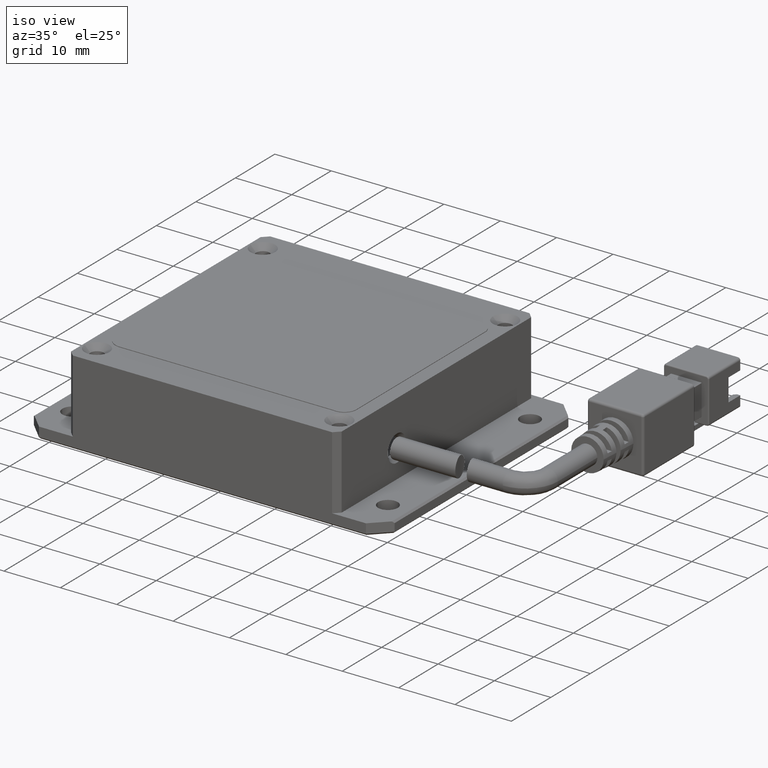
[diagram: clean part render]
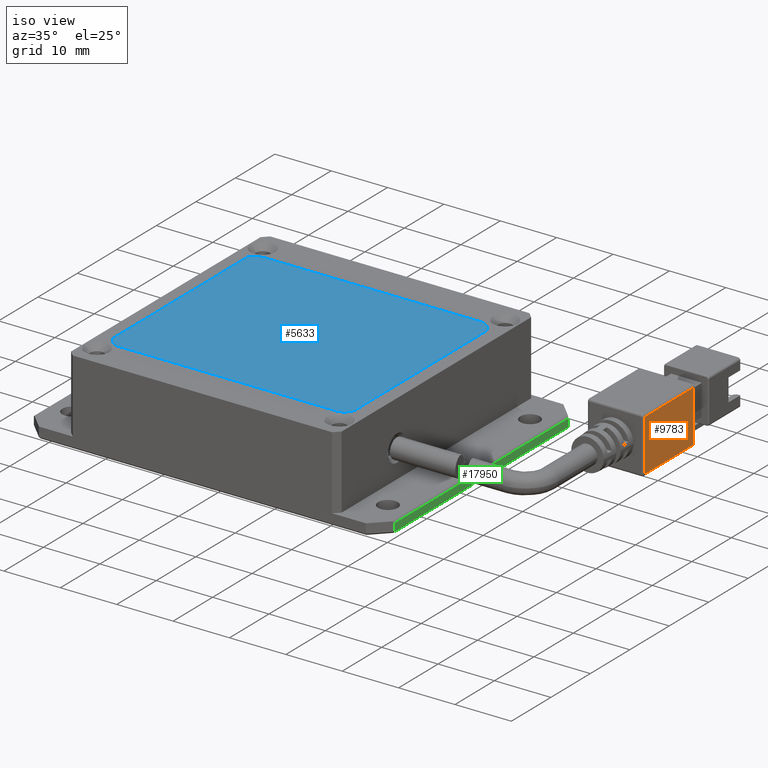
[diagram: same view with three faces highlighted in distinct colors, each labeled with its STEP entity id]
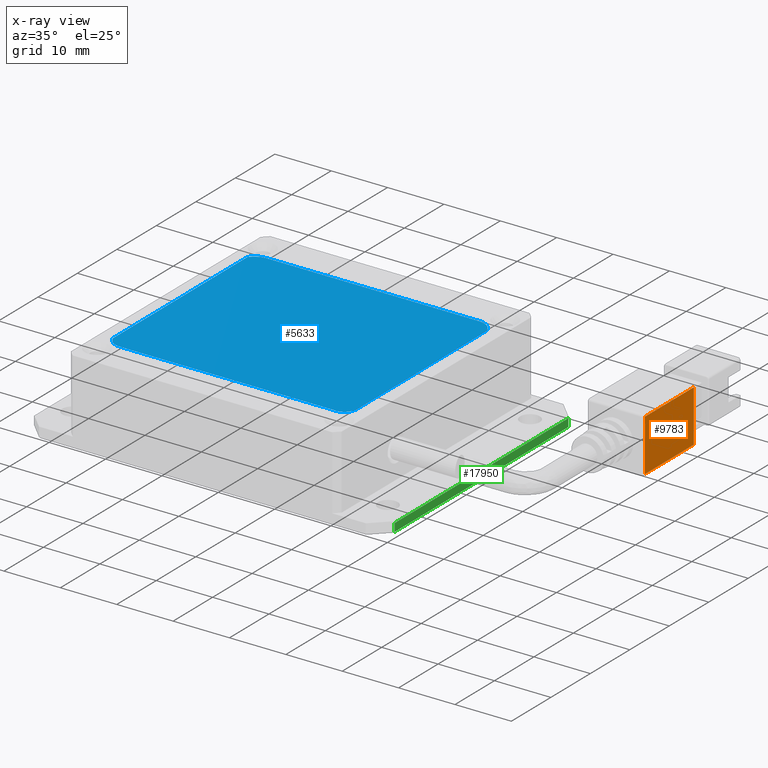
[diagram: x-ray of the same camera — body ghosted, the three highlighted faces saturated]
A machine part, iso view with three faces highlighted in distinct colors.
The next image is the same camera in x-ray (body ghosted, the three faces saturated) — at least one of them is partly hidden behind the body in this view.
Their STEP definitions:

[orange] entity #9783 — the highlighted planar face has unit normal (-1, -0, -0).
#362 = VECTOR ( 'NONE', #4843, 1000.000000000000000 ) ;
#505 = LINE ( 'NONE', #3979, #4218 ) ;
#1325 = CARTESIAN_POINT ( 'NONE',  ( 52.09316533027873000, 13.69095074455903200, 9.999999999983700100 ) ) ;
#1761 = LINE ( 'NONE', #15433, #6433 ) ;
#2798 = DIRECTION ( 'NONE',  ( -8.673617379884010800E-017, 0.0000000000000000000, 1.000000000000000000 ) ) ;
#3044 = ORIENTED_EDGE ( 'NONE', *, *, #3773, .F. ) ;
#3773 = EDGE_CURVE ( 'NONE', #12737, #5353, #1761, .T. ) ;
#3845 = EDGE_CURVE ( 'NONE', #17554, #12230, #505, .T. ) ;
#3979 = CARTESIAN_POINT ( 'NONE',  ( 52.09316533027873000, 26.29095074455903400, 0.3999999999836990100 ) ) ;
#4145 = LINE ( 'NONE', #1325, #14032 ) ;
#4218 = VECTOR ( 'NONE', #18277, 1000.000000000000000 ) ;
#4843 = DIRECTION ( 'NONE',  ( 8.673617379884010800E-017, -0.0000000000000000000, -1.000000000000000000 ) ) ;
#5277 = CARTESIAN_POINT ( 'NONE',  ( 52.09316533027873000, 26.09095074455903400, 9.599999999983701600 ) ) ;
#5353 = VERTEX_POINT ( 'NONE', #5277 ) ;
#6433 = VECTOR ( 'NONE', #20285, 1000.000000000000000 ) ;
#8294 = LINE ( 'NONE', #9555, #362 ) ;
#8371 = EDGE_CURVE ( 'NONE', #5353, #17554, #8294, .T. ) ;
#9269 = DIRECTION ( 'NONE',  ( -8.673617379884010800E-017, -0.0000000000000000000, 1.000000000000000000 ) ) ;
#9555 = CARTESIAN_POINT ( 'NONE',  ( 52.09316533027873000, 26.09095074455903400, -1.629946178027807900E-011 ) ) ;
#9783 = ADVANCED_FACE ( 'NONE', ( #10872 ), #18631, .F. ) ;
#10124 = CARTESIAN_POINT ( 'NONE',  ( 52.09316533027873000, 13.69095074455903200, 9.599999999983701600 ) ) ;
#10872 = FACE_OUTER_BOUND ( 'NONE', #18817, .T. ) ;
#12230 = VERTEX_POINT ( 'NONE', #19462 ) ;
#12355 = CARTESIAN_POINT ( 'NONE',  ( 52.09316533027873000, 26.09095074455903400, 0.3999999999836990100 ) ) ;
#12373 = ORIENTED_EDGE ( 'NONE', *, *, #3845, .F. ) ;
#12737 = VERTEX_POINT ( 'NONE', #10124 ) ;
#14032 = VECTOR ( 'NONE', #9269, 1000.000000000000000 ) ;
#14665 = EDGE_CURVE ( 'NONE', #12230, #12737, #4145, .T. ) ;
#15433 = CARTESIAN_POINT ( 'NONE',  ( 52.09316533027873000, 26.29095074455903400, 9.599999999983701600 ) ) ;
#16575 = ORIENTED_EDGE ( 'NONE', *, *, #8371, .F. ) ;
#17090 = ORIENTED_EDGE ( 'NONE', *, *, #14665, .F. ) ;
#17182 = DIRECTION ( 'NONE',  ( -1.000000000000000000, -3.081487911019577400E-033, -8.673617379884010800E-017 ) ) ;
#17554 = VERTEX_POINT ( 'NONE', #12355 ) ;
#18277 = DIRECTION ( 'NONE',  ( 3.081487911019577400E-033, -1.000000000000000000, 2.672764710092188000E-049 ) ) ;
#18631 = PLANE ( 'NONE',  #20017 ) ;
#18817 = EDGE_LOOP ( 'NONE', ( #16575, #3044, #17090, #12373 ) ) ;
#19462 = CARTESIAN_POINT ( 'NONE',  ( 52.09316533027873000, 13.69095074455903200, 0.3999999999836990100 ) ) ;
#20017 = AXIS2_PLACEMENT_3D ( 'NONE', #20230, #17182, #2798 ) ;
#20230 = CARTESIAN_POINT ( 'NONE',  ( 52.09316533027873000, 26.29095074455903400, 9.999999999983700100 ) ) ;
#20285 = DIRECTION ( 'NONE',  ( -3.081487911019577400E-033, 1.000000000000000000, -2.672764710092188000E-049 ) ) ;

[blue] entity #5633 — the highlighted planar face has unit normal (-0, 0, -1).
#139 = CIRCLE ( 'NONE', #4831, 2.646187890382241600 ) ;
#527 = LINE ( 'NONE', #4839, #16861 ) ;
#1177 = DIRECTION ( 'NONE',  ( -0.0000000000000000000, -1.000000000000000000, -0.0000000000000000000 ) ) ;
#1588 = DIRECTION ( 'NONE',  ( 0.0000000000000000000, 0.0000000000000000000, 1.000000000000000000 ) ) ;
#2179 = CARTESIAN_POINT ( 'NONE',  ( 18.45703195761590700, -14.40474704532020500, 13.09999999998369100 ) ) ;
#2211 = AXIS2_PLACEMENT_3D ( 'NONE', #2179, #6715, #17769 ) ;
#2310 = DIRECTION ( 'NONE',  ( -1.000000000000000000, 0.0000000000000000000, 0.0000000000000000000 ) ) ;
#2376 = PLANE ( 'NONE',  #10811 ) ;
#2696 = ORIENTED_EDGE ( 'NONE', *, *, #12996, .T. ) ;
#2778 = CARTESIAN_POINT ( 'NONE',  ( 18.00368343727945900, -16.50904925542707200, 13.09999999998369100 ) ) ;
#3017 = FACE_OUTER_BOUND ( 'NONE', #15915, .T. ) ;
#3020 = ORIENTED_EDGE ( 'NONE', *, *, #7246, .T. ) ;
#3129 = CARTESIAN_POINT ( 'NONE',  ( -22.40683466972126700, 19.38628632309804800, 13.09999999998369100 ) ) ;
#3313 = ORIENTED_EDGE ( 'NONE', *, *, #11487, .T. ) ;
#3550 = CARTESIAN_POINT ( 'NONE',  ( -19.66498328437758800, -16.50904925542707600, 13.09999999998369100 ) ) ;
#3885 = CIRCLE ( 'NONE', #2211, 2.152582791056338400 ) ;
#3892 = CARTESIAN_POINT ( 'NONE',  ( 20.59316533027872600, 18.61088704111909600, 13.09999999998369100 ) ) ;
#3941 = VERTEX_POINT ( 'NONE', #7845 ) ;
#4578 = VERTEX_POINT ( 'NONE', #10385 ) ;
#4831 = AXIS2_PLACEMENT_3D ( 'NONE', #11619, #6891, #10090 ) ;
#4839 = CARTESIAN_POINT ( 'NONE',  ( -19.66498328437758800, -16.50904925542707600, 13.09999999998369100 ) ) ;
#4859 = CIRCLE ( 'NONE', #11204, 3.025643677028646600 ) ;
#5236 = VERTEX_POINT ( 'NONE', #3129 ) ;
#5597 = CARTESIAN_POINT ( 'NONE',  ( -22.40683466972126700, -14.67035368407022000, 13.09999999998369100 ) ) ;
#5633 = ADVANCED_FACE ( 'NONE', ( #3017 ), #2376, .F. ) ;
#5870 = VERTEX_POINT ( 'NONE', #3892 ) ;
#6301 = ORIENTED_EDGE ( 'NONE', *, *, #9198, .T. ) ;
#6332 = LINE ( 'NONE', #17201, #7847 ) ;
#6648 = ORIENTED_EDGE ( 'NONE', *, *, #15256, .T. ) ;
#6649 = VECTOR ( 'NONE', #15987, 1000.000000000000000 ) ;
#6715 = DIRECTION ( 'NONE',  ( 0.0000000000000000000, 0.0000000000000000000, 1.000000000000000000 ) ) ;
#6891 = DIRECTION ( 'NONE',  ( 0.0000000000000000000, 0.0000000000000000000, 1.000000000000000000 ) ) ;
#7064 = VERTEX_POINT ( 'NONE', #5597 ) ;
#7175 = EDGE_CURVE ( 'NONE', #5870, #3941, #15243, .T. ) ;
#7246 = EDGE_CURVE ( 'NONE', #4578, #5870, #6332, .T. ) ;
#7845 = CARTESIAN_POINT ( 'NONE',  ( 18.00368343727945600, 20.64631015631383800, 13.09999999998369100 ) ) ;
#7847 = VECTOR ( 'NONE', #18648, 1000.000000000000000 ) ;
#8487 = DIRECTION ( 'NONE',  ( 0.0000000000000000000, 0.0000000000000000000, 1.000000000000000000 ) ) ;
#9198 = EDGE_CURVE ( 'NONE', #12136, #12545, #527, .T. ) ;
#9484 = CARTESIAN_POINT ( 'NONE',  ( -19.88397062032537500, 20.64631015631383800, 13.09999999998369100 ) ) ;
#10090 = DIRECTION ( 'NONE',  ( -1.000000000000000000, 0.0000000000000000000, 0.0000000000000000000 ) ) ;
#10304 = ORIENTED_EDGE ( 'NONE', *, *, #10822, .T. ) ;
#10385 = CARTESIAN_POINT ( 'NONE',  ( 20.59316533027872600, -14.67035368407021800, 13.09999999998369100 ) ) ;
#10811 = AXIS2_PLACEMENT_3D ( 'NONE', #11634, #13202, #2310 ) ;
#10822 = EDGE_CURVE ( 'NONE', #15483, #5236, #4859, .T. ) ;
#11204 = AXIS2_PLACEMENT_3D ( 'NONE', #11541, #8487, #14602 ) ;
#11487 = EDGE_CURVE ( 'NONE', #12545, #4578, #3885, .T. ) ;
#11541 = CARTESIAN_POINT ( 'NONE',  ( -19.94927597337307600, 17.62137133524542800, 13.09999999998369100 ) ) ;
#11619 = CARTESIAN_POINT ( 'NONE',  ( -19.88397062032537500, -13.87193816601501000, 13.09999999998369100 ) ) ;
#11634 = CARTESIAN_POINT ( 'NONE',  ( -19.94927597337307600, 17.62137133524542800, 13.09999999998369100 ) ) ;
#12136 = VERTEX_POINT ( 'NONE', #3550 ) ;
#12517 = CARTESIAN_POINT ( 'NONE',  ( -22.40683466972126700, -14.67035368407021800, 13.09999999998369100 ) ) ;
#12545 = VERTEX_POINT ( 'NONE', #2778 ) ;
#12996 = EDGE_CURVE ( 'NONE', #5236, #7064, #16853, .T. ) ;
#13202 = DIRECTION ( 'NONE',  ( -0.0000000000000000000, 0.0000000000000000000, -1.000000000000000000 ) ) ;
#13324 = AXIS2_PLACEMENT_3D ( 'NONE', #18844, #1588, #18921 ) ;
#14602 = DIRECTION ( 'NONE',  ( -1.000000000000000000, 0.0000000000000000000, 0.0000000000000000000 ) ) ;
#15243 = CIRCLE ( 'NONE', #13324, 2.821431938662586300 ) ;
#15256 = EDGE_CURVE ( 'NONE', #7064, #12136, #139, .T. ) ;
#15483 = VERTEX_POINT ( 'NONE', #20015 ) ;
#15606 = VECTOR ( 'NONE', #1177, 1000.000000000000000 ) ;
#15915 = EDGE_LOOP ( 'NONE', ( #10304, #2696, #6648, #6301, #3313, #3020, #20490, #20474 ) ) ;
#15987 = DIRECTION ( 'NONE',  ( -1.000000000000000000, -0.0000000000000000000, -0.0000000000000000000 ) ) ;
#16853 = LINE ( 'NONE', #12517, #15606 ) ;
#16861 = VECTOR ( 'NONE', #19007, 1000.000000000000000 ) ;
#17201 = CARTESIAN_POINT ( 'NONE',  ( 20.59316533027872600, -14.67035368407021800, 13.09999999998369100 ) ) ;
#17769 = DIRECTION ( 'NONE',  ( 1.000000000000000000, 0.0000000000000000000, 0.0000000000000000000 ) ) ;
#18648 = DIRECTION ( 'NONE',  ( 0.0000000000000000000, 1.000000000000000000, 0.0000000000000000000 ) ) ;
#18844 = CARTESIAN_POINT ( 'NONE',  ( 17.88267781039737200, 17.82747425779683000, 13.09999999998369100 ) ) ;
#18921 = DIRECTION ( 'NONE',  ( -1.000000000000000000, 0.0000000000000000000, 0.0000000000000000000 ) ) ;
#19007 = DIRECTION ( 'NONE',  ( 1.000000000000000000, 0.0000000000000000000, 0.0000000000000000000 ) ) ;
#20008 = LINE ( 'NONE', #9484, #6649 ) ;
#20015 = CARTESIAN_POINT ( 'NONE',  ( -19.88397062032537500, 20.64631015631383800, 13.09999999998369100 ) ) ;
#20295 = EDGE_CURVE ( 'NONE', #3941, #15483, #20008, .T. ) ;
#20474 = ORIENTED_EDGE ( 'NONE', *, *, #20295, .T. ) ;
#20490 = ORIENTED_EDGE ( 'NONE', *, *, #7175, .T. ) ;

[green] entity #17950 — the highlighted planar face has unit normal (-1, 0, 0).
#283 = CARTESIAN_POINT ( 'NONE',  ( 31.09316533027871900, -19.70904925544094500, -0.3000000000163163300 ) ) ;
#1575 = CARTESIAN_POINT ( 'NONE',  ( 31.09316533027871900, 24.29095074455903700, -2.000000000016308300 ) ) ;
#1723 = LINE ( 'NONE', #1575, #18037 ) ;
#1989 = VERTEX_POINT ( 'NONE', #283 ) ;
#2027 = DIRECTION ( 'NONE',  ( 0.0000000000000000000, 1.000000000000000000, 0.0000000000000000000 ) ) ;
#2984 = VECTOR ( 'NONE', #17338, 1000.000000000000000 ) ;
#5055 = CARTESIAN_POINT ( 'NONE',  ( 31.09316533027871900, -22.70904925544097000, -0.3000000000163163800 ) ) ;
#5614 = FACE_OUTER_BOUND ( 'NONE', #6699, .T. ) ;
#5953 = DIRECTION ( 'NONE',  ( -1.000000000000000000, 0.0000000000000000000, 0.0000000000000000000 ) ) ;
#6699 = EDGE_LOOP ( 'NONE', ( #17664, #16928, #7270, #14504 ) ) ;
#7270 = ORIENTED_EDGE ( 'NONE', *, *, #14056, .F. ) ;
#8104 = CARTESIAN_POINT ( 'NONE',  ( 31.09316533027871900, -22.70904925544097000, -1.700000000016292700 ) ) ;
#8493 = EDGE_CURVE ( 'NONE', #1989, #14270, #9788, .T. ) ;
#9012 = PLANE ( 'NONE',  #12047 ) ;
#9788 = LINE ( 'NONE', #5055, #13468 ) ;
#9971 = EDGE_CURVE ( 'NONE', #14270, #19114, #1723, .T. ) ;
#10556 = CARTESIAN_POINT ( 'NONE',  ( 31.09316533027871900, -22.70904925544097000, -2.000000000016308300 ) ) ;
#11220 = DIRECTION ( 'NONE',  ( -0.0000000000000000000, -1.000000000000000000, -0.0000000000000000000 ) ) ;
#11629 = LINE ( 'NONE', #8104, #17756 ) ;
#11950 = CARTESIAN_POINT ( 'NONE',  ( 31.09316533027871900, -19.70904925544097000, -1.700000000016287100 ) ) ;
#12026 = CARTESIAN_POINT ( 'NONE',  ( 31.09316533027871900, 24.29095074455903700, -0.3000000000163161600 ) ) ;
#12047 = AXIS2_PLACEMENT_3D ( 'NONE', #10556, #5953, #16972 ) ;
#12712 = CARTESIAN_POINT ( 'NONE',  ( 31.09316533027871900, -19.70904925544094500, -2.000000000016308300 ) ) ;
#13468 = VECTOR ( 'NONE', #2027, 1000.000000000000000 ) ;
#14056 = EDGE_CURVE ( 'NONE', #19114, #16490, #11629, .T. ) ;
#14270 = VERTEX_POINT ( 'NONE', #12026 ) ;
#14504 = ORIENTED_EDGE ( 'NONE', *, *, #9971, .F. ) ;
#16076 = DIRECTION ( 'NONE',  ( -0.0000000000000000000, -0.0000000000000000000, -1.000000000000000000 ) ) ;
#16490 = VERTEX_POINT ( 'NONE', #11950 ) ;
#16928 = ORIENTED_EDGE ( 'NONE', *, *, #19773, .T. ) ;
#16972 = DIRECTION ( 'NONE',  ( 0.0000000000000000000, 0.0000000000000000000, 1.000000000000000000 ) ) ;
#17338 = DIRECTION ( 'NONE',  ( 0.0000000000000000000, 0.0000000000000000000, -1.000000000000000000 ) ) ;
#17369 = CARTESIAN_POINT ( 'NONE',  ( 31.09316533027871900, 24.29095074455903700, -1.700000000016291400 ) ) ;
#17664 = ORIENTED_EDGE ( 'NONE', *, *, #8493, .F. ) ;
#17756 = VECTOR ( 'NONE', #11220, 1000.000000000000000 ) ;
#17950 = ADVANCED_FACE ( 'NONE', ( #5614 ), #9012, .F. ) ;
#18037 = VECTOR ( 'NONE', #16076, 1000.000000000000000 ) ;
#18803 = LINE ( 'NONE', #12712, #2984 ) ;
#19114 = VERTEX_POINT ( 'NONE', #17369 ) ;
#19773 = EDGE_CURVE ( 'NONE', #1989, #16490, #18803, .T. ) ;